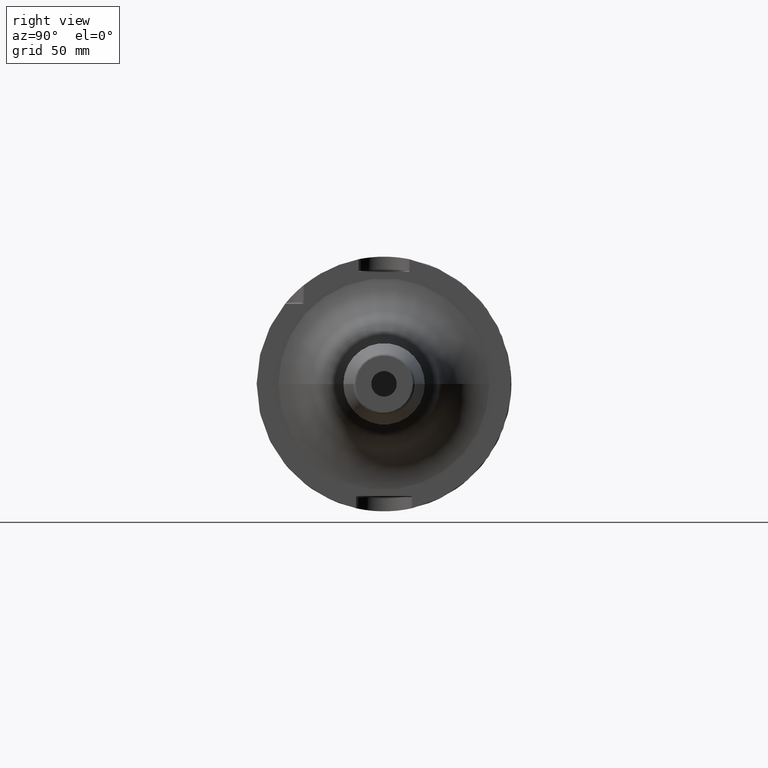
[diagram: clean part render]
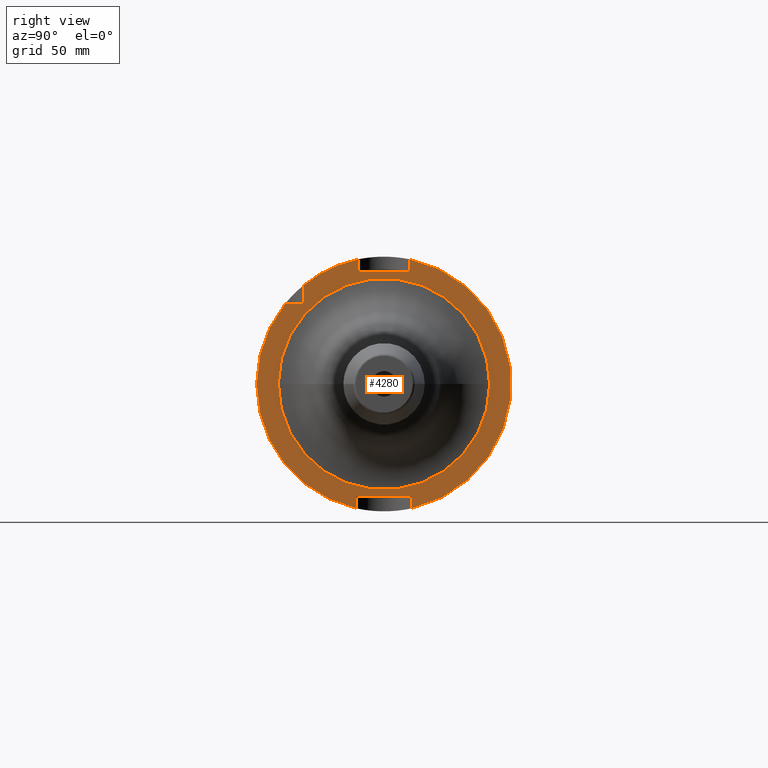
[diagram: same view with one face highlighted and labeled with its STEP entity id]
A machine part, right view. The second image highlights one B-rep face of the part: STEP entity #4280.
In plain terms, the highlighted planar face has unit normal (1, 0, 0).
Its self-contained STEP definition (entity closure, byte-faithful):
#1051=DIRECTION('',(0.E0,-7.071067811865E-1,-7.071067811865E-1));
#1052=VECTOR('',#1051,5.656854249492E-1);
#1053=CARTESIAN_POINT('',(2.9E1,-3.15E1,3.19E1));
#1054=LINE('',#1053,#1052);
#1059=DIRECTION('',(0.E0,1.E0,0.E0));
#1060=VECTOR('',#1059,6.929756630708E0);
#1061=CARTESIAN_POINT('',(2.9E1,-3.882975663071E1,3.15E1));
#1062=LINE('',#1061,#1060);
#1063=DIRECTION('',(0.E0,0.E0,-1.E0));
#1064=VECTOR('',#1063,6.929756630708E0);
#1065=CARTESIAN_POINT('',(2.9E1,-3.15E1,3.882975663071E1));
#1066=LINE('',#1065,#1064);
#1067=DIRECTION('',(0.E0,0.E0,-1.E0));
#1068=VECTOR('',#1067,4.589794855664E0);
#1069=CARTESIAN_POINT('',(2.9E1,-1.E1,4.898979485566E1));
#1070=LINE('',#1069,#1068);
#1071=DIRECTION('',(0.E0,1.E0,0.E0));
#1072=VECTOR('',#1071,1.92E1);
#1073=CARTESIAN_POINT('',(2.9E1,-9.6E0,4.4E1));
#1074=LINE('',#1073,#1072);
#1075=DIRECTION('',(0.E0,0.E0,-1.E0));
#1076=VECTOR('',#1075,4.589794855664E0);
#1077=CARTESIAN_POINT('',(2.9E1,1.E1,4.898979485566E1));
#1078=LINE('',#1077,#1076);
#1079=DIRECTION('',(0.E0,0.E0,1.E0));
#1080=VECTOR('',#1079,4.374993593029E0);
#1081=CARTESIAN_POINT('',(2.9E1,1.1E1,-4.877499359303E1));
#1082=LINE('',#1081,#1080);
#1083=DIRECTION('',(0.E0,-1.E0,0.E0));
#1084=VECTOR('',#1083,2.12E1);
#1085=CARTESIAN_POINT('',(2.9E1,1.06E1,-4.4E1));
#1086=LINE('',#1085,#1084);
#1087=DIRECTION('',(0.E0,0.E0,1.E0));
#1088=VECTOR('',#1087,4.374993593029E0);
#1089=CARTESIAN_POINT('',(2.9E1,-1.1E1,-4.877499359303E1));
#1090=LINE('',#1089,#1088);
#1091=CARTESIAN_POINT('',(2.9E1,0.E0,0.E0));
#1092=DIRECTION('',(1.E0,0.E0,0.E0));
#1093=DIRECTION('',(0.E0,-1.E0,0.E0));
#1094=AXIS2_PLACEMENT_3D('',#1091,#1092,#1093);
#1096=CARTESIAN_POINT('',(2.9E1,0.E0,0.E0));
#1097=DIRECTION('',(1.E0,0.E0,0.E0));
#1098=DIRECTION('',(0.E0,1.E0,0.E0));
#1099=AXIS2_PLACEMENT_3D('',#1096,#1097,#1098);
#1114=CARTESIAN_POINT('',(2.9E1,0.E0,0.E0));
#1115=DIRECTION('',(1.E0,0.E0,0.E0));
#1116=DIRECTION('',(0.E0,2.2E-1,-9.754998718606E-1));
#1117=AXIS2_PLACEMENT_3D('',#1114,#1115,#1116);
#1127=CARTESIAN_POINT('',(2.9E1,0.E0,0.E0));
#1128=DIRECTION('',(1.E0,0.E0,0.E0));
#1129=DIRECTION('',(0.E0,-7.765951326142E-1,6.3E-1));
#1130=AXIS2_PLACEMENT_3D('',#1127,#1128,#1129);
#1144=CARTESIAN_POINT('',(2.9E1,0.E0,0.E0));
#1145=DIRECTION('',(1.E0,0.E0,0.E0));
#1146=DIRECTION('',(0.E0,-2.E-1,9.797958971133E-1));
#1147=AXIS2_PLACEMENT_3D('',#1144,#1145,#1146);
#1251=DIRECTION('',(0.E0,7.071067811866E-1,-7.071067811865E-1));
#1252=VECTOR('',#1251,5.656854249492E-1);
#1253=CARTESIAN_POINT('',(2.9E1,1.06E1,-4.4E1));
#1254=LINE('',#1253,#1252);
#1259=DIRECTION('',(0.E0,7.071067811866E-1,7.071067811865E-1));
#1260=VECTOR('',#1259,5.656854249492E-1);
#1261=CARTESIAN_POINT('',(2.9E1,-1.1E1,-4.44E1));
#1262=LINE('',#1261,#1260);
#1748=DIRECTION('',(0.E0,-7.071067811866E-1,-7.071067811865E-1));
#1749=VECTOR('',#1748,5.656854249492E-1);
#1750=CARTESIAN_POINT('',(2.9E1,1.E1,4.44E1));
#1751=LINE('',#1750,#1749);
#1756=DIRECTION('',(0.E0,-7.071067811866E-1,7.071067811865E-1));
#1757=VECTOR('',#1756,5.656854249492E-1);
#1758=CARTESIAN_POINT('',(2.9E1,-9.6E0,4.4E1));
#1759=LINE('',#1758,#1757);
#2966=CARTESIAN_POINT('',(2.9E1,-9.6E0,4.4E1));
#2967=CARTESIAN_POINT('',(2.9E1,-1.E1,4.44E1));
#2968=VERTEX_POINT('',#2966);
#2969=VERTEX_POINT('',#2967);
#2970=CARTESIAN_POINT('',(2.9E1,1.E1,4.44E1));
#2971=CARTESIAN_POINT('',(2.9E1,9.6E0,4.4E1));
#2972=VERTEX_POINT('',#2970);
#2973=VERTEX_POINT('',#2971);
#2974=CARTESIAN_POINT('',(2.9E1,1.06E1,-4.4E1));
#2975=CARTESIAN_POINT('',(2.9E1,1.1E1,-4.44E1));
#2976=VERTEX_POINT('',#2974);
#2977=VERTEX_POINT('',#2975);
#2978=CARTESIAN_POINT('',(2.9E1,-1.1E1,-4.44E1));
#2979=CARTESIAN_POINT('',(2.9E1,-1.06E1,-4.4E1));
#2980=VERTEX_POINT('',#2978);
#2981=VERTEX_POINT('',#2979);
#3019=CARTESIAN_POINT('',(2.9E1,1.1E1,-4.877499359303E1));
#3021=VERTEX_POINT('',#3019);
#3027=CARTESIAN_POINT('',(2.9E1,-1.1E1,-4.877499359303E1));
#3029=VERTEX_POINT('',#3027);
#3062=CARTESIAN_POINT('',(2.9E1,-1.E1,4.898979485566E1));
#3063=VERTEX_POINT('',#3062);
#3064=CARTESIAN_POINT('',(2.9E1,1.E1,4.898979485566E1));
#3065=VERTEX_POINT('',#3064);
#3068=CARTESIAN_POINT('',(2.9E1,-3.15E1,3.19E1));
#3069=CARTESIAN_POINT('',(2.9E1,-3.19E1,3.15E1));
#3070=VERTEX_POINT('',#3068);
#3071=VERTEX_POINT('',#3069);
#3077=CARTESIAN_POINT('',(2.9E1,-3.882975663071E1,3.15E1));
#3079=VERTEX_POINT('',#3077);
#3081=CARTESIAN_POINT('',(2.9E1,-3.15E1,3.882975663071E1));
#3083=VERTEX_POINT('',#3081);
#3165=CARTESIAN_POINT('',(2.9E1,-4.150055679356E1,1.889770086480E-13));
#3166=CARTESIAN_POINT('',(2.9E1,4.150055679356E1,-1.940593610520E-13));
#3167=VERTEX_POINT('',#3165);
#3168=VERTEX_POINT('',#3166);
#4236=CARTESIAN_POINT('',(2.9E1,0.E0,0.E0));
#4237=DIRECTION('',(1.E0,0.E0,0.E0));
#4238=DIRECTION('',(0.E0,-1.E0,0.E0));
#4239=AXIS2_PLACEMENT_3D('',#4236,#4237,#4238);
#4240=PLANE('',#4239);
#4242=ORIENTED_EDGE('',*,*,#4241,.T.);
#4243=ORIENTED_EDGE('',*,*,#4226,.F.);
#4245=ORIENTED_EDGE('',*,*,#4244,.F.);
#4247=ORIENTED_EDGE('',*,*,#4246,.F.);
#4249=ORIENTED_EDGE('',*,*,#4248,.T.);
#4251=ORIENTED_EDGE('',*,*,#4250,.F.);
#4253=ORIENTED_EDGE('',*,*,#4252,.T.);
#4255=ORIENTED_EDGE('',*,*,#4254,.F.);
#4257=ORIENTED_EDGE('',*,*,#4256,.F.);
#4259=ORIENTED_EDGE('',*,*,#4258,.F.);
#4261=ORIENTED_EDGE('',*,*,#4260,.T.);
#4263=ORIENTED_EDGE('',*,*,#4262,.F.);
#4265=ORIENTED_EDGE('',*,*,#4264,.T.);
#4267=ORIENTED_EDGE('',*,*,#4266,.F.);
#4269=ORIENTED_EDGE('',*,*,#4268,.F.);
#4271=ORIENTED_EDGE('',*,*,#4270,.F.);
#4272=EDGE_LOOP('',(#4242,#4243,#4245,#4247,#4249,#4251,#4253,#4255,#4257,#4259,
#4261,#4263,#4265,#4267,#4269,#4271));
#4273=FACE_OUTER_BOUND('',#4272,.F.);
#4275=ORIENTED_EDGE('',*,*,#4274,.T.);
#4277=ORIENTED_EDGE('',*,*,#4276,.T.);
#4278=EDGE_LOOP('',(#4275,#4277));
#4279=FACE_BOUND('',#4278,.F.);
#4280=ADVANCED_FACE('',(#4273,#4279),#4240,.T.);
#1095=CIRCLE('',#1094,4.150055679356E1);
#1100=CIRCLE('',#1099,4.150055679356E1);
#1118=CIRCLE('',#1117,5.E1);
#1131=CIRCLE('',#1130,5.E1);
#1148=CIRCLE('',#1147,5.E1);
#4226=EDGE_CURVE('',#3070,#3071,#1054,.T.);
#4241=EDGE_CURVE('',#3079,#3071,#1062,.T.);
#4244=EDGE_CURVE('',#3083,#3070,#1066,.T.);
#4246=EDGE_CURVE('',#3063,#3083,#1148,.T.);
#4248=EDGE_CURVE('',#3063,#2969,#1070,.T.);
#4250=EDGE_CURVE('',#2968,#2969,#1759,.T.);
#4252=EDGE_CURVE('',#2968,#2973,#1074,.T.);
#4254=EDGE_CURVE('',#2972,#2973,#1751,.T.);
#4256=EDGE_CURVE('',#3065,#2972,#1078,.T.);
#4258=EDGE_CURVE('',#3021,#3065,#1118,.T.);
#4260=EDGE_CURVE('',#3021,#2977,#1082,.T.);
#4262=EDGE_CURVE('',#2976,#2977,#1254,.T.);
#4264=EDGE_CURVE('',#2976,#2981,#1086,.T.);
#4266=EDGE_CURVE('',#2980,#2981,#1262,.T.);
#4268=EDGE_CURVE('',#3029,#2980,#1090,.T.);
#4270=EDGE_CURVE('',#3079,#3029,#1131,.T.);
#4274=EDGE_CURVE('',#3167,#3168,#1095,.T.);
#4276=EDGE_CURVE('',#3168,#3167,#1100,.T.);